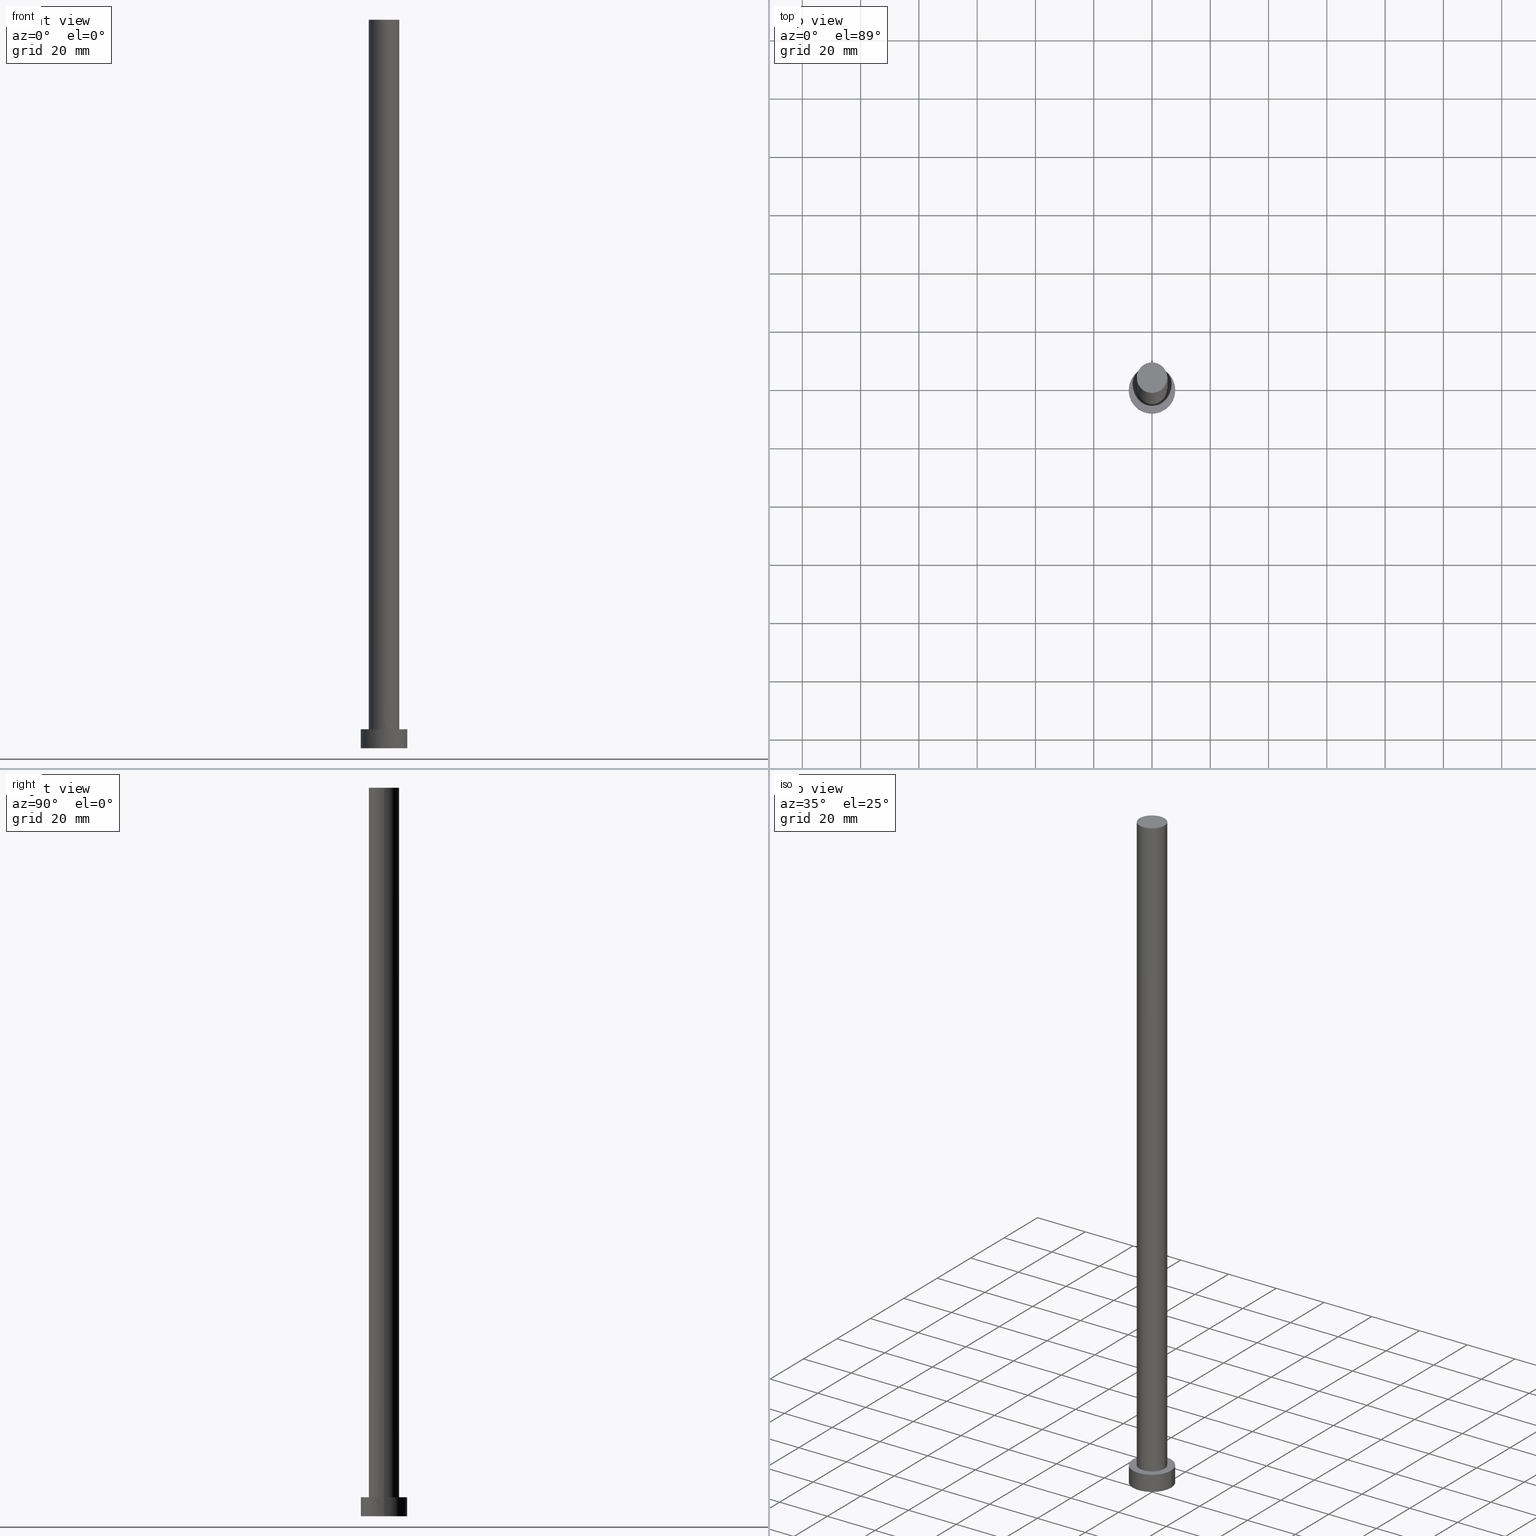
[diagram: canonical four-view strip — front | top / right | iso, engineering-drawing reading convention]
A machine part, canonical four-view strip (front | top / right | iso — engineering-drawing reading convention). The complete STEP part file that produces these views, byte-faithful:
ISO-10303-21;
HEADER;
FILE_DESCRIPTION (( 'STEP AP203' ),
    '1' );
FILE_NAME ('ee8f.STEP',
    '2023-02-13T12:22:09',
    ( '' ),
    ( '' ),
    'SwSTEP 2.0',
    'SolidWorks 2019',
    '' );
FILE_SCHEMA (( 'CONFIG_CONTROL_DESIGN' ));
ENDSEC;

DATA;
#1 = APPROVAL_DATE_TIME ( #7, #166 ) ;
#2 = APPROVAL_DATE_TIME ( #125, #99 ) ;
#3 = CC_DESIGN_PERSON_AND_ORGANIZATION_ASSIGNMENT ( #137, #178, ( #198 ) ) ;
#4 = CARTESIAN_POINT ( 'NONE',  ( -8.000000000000000000, 0.000000000000000000, 0.000000000000000000 ) ) ;
#5 = DATE_AND_TIME ( #28, #92 ) ;
#6 = ORIENTED_EDGE ( 'NONE', *, *, #126, .F. ) ;
#7 = DATE_AND_TIME ( #156, #243 ) ;
#8 = CARTESIAN_POINT ( 'NONE',  ( 0.000000000000000000, 0.000000000000000000, 6.500000000000000000 ) ) ;
#9 = PERSON_AND_ORGANIZATION_ROLE ( 'design_owner' ) ;
#10 = DIRECTION ( 'NONE',  ( -0.000000000000000000, -0.000000000000000000, -1.000000000000000000 ) ) ;
#11 = CARTESIAN_POINT ( 'NONE',  ( 0.000000000000000000, 0.000000000000000000, 250.0000000000000000 ) ) ;
#12 = CARTESIAN_POINT ( 'NONE',  ( 5.250000000000000888, 6.429395695523605139E-16, 250.0000000000000000 ) ) ;
#13 = SECURITY_CLASSIFICATION ( '', '', #240 ) ;
#14 = CARTESIAN_POINT ( 'NONE',  ( 0.000000000000000000, 0.000000000000000000, 6.500000000000000000 ) ) ;
#15 = ORIENTED_EDGE ( 'NONE', *, *, #136, .F. ) ;
#16 = VECTOR ( 'NONE', #50, 1000.000000000000000 ) ;
#17 = CC_DESIGN_PERSON_AND_ORGANIZATION_ASSIGNMENT ( #140, #153, ( #13 ) ) ;
#18 = APPROVAL_PERSON_ORGANIZATION ( #41, #166, #215 ) ;
#19 = DIRECTION ( 'NONE',  ( 1.000000000000000000, 0.000000000000000000, 0.000000000000000000 ) ) ;
#20 = EDGE_CURVE ( 'NONE', #105, #252, #159, .T. ) ;
#21 = AXIS2_PLACEMENT_3D ( 'NONE', #83, #157, #239 ) ;
#22 = EDGE_LOOP ( 'NONE', ( #132, #116, #80, #194 ) ) ;
#23 = APPROVAL_STATUS ( 'not_yet_approved' ) ;
#24 = EDGE_LOOP ( 'NONE', ( #141, #174 ) ) ;
#25 = DIRECTION ( 'NONE',  ( 0.000000000000000000, 0.000000000000000000, 1.000000000000000000 ) ) ;
#26 = ORIENTED_EDGE ( 'NONE', *, *, #37, .F. ) ;
#27 = PRODUCT_RELATED_PRODUCT_CATEGORY ( 'detail', '', ( #87 ) ) ;
#28 = CALENDAR_DATE ( 2023, 13, 2 ) ;
#29 = ORIENTED_EDGE ( 'NONE', *, *, #94, .T. ) ;
#30 = EDGE_LOOP ( 'NONE', ( #26, #6, #200, #142 ) ) ;
#31 = CC_DESIGN_APPROVAL ( #74, ( #13 ) ) ;
#32 = DIRECTION ( 'NONE',  ( 1.000000000000000000, 0.000000000000000000, 0.000000000000000000 ) ) ;
#33 = PRODUCT_DEFINITION ( 'NEZN�M�', '', #198, #255 ) ;
#34 = DIRECTION ( 'NONE',  ( -0.000000000000000000, -0.000000000000000000, -1.000000000000000000 ) ) ;
#35 = ORIENTED_EDGE ( 'NONE', *, *, #20, .F. ) ;
#36 = FACE_OUTER_BOUND ( 'NONE', #90, .T. ) ;
#37 = EDGE_CURVE ( 'NONE', #230, #188, #97, .T. ) ;
#38 = DIRECTION ( 'NONE',  ( 0.000000000000000000, 0.000000000000000000, 1.000000000000000000 ) ) ;
#39 = CIRCLE ( 'NONE', #186, 5.250000000000000888 ) ;
#40 = ORIENTED_EDGE ( 'NONE', *, *, #126, .T. ) ;
#41 = PERSON_AND_ORGANIZATION ( #212, #115 ) ;
#42 = FACE_OUTER_BOUND ( 'NONE', #149, .T. ) ;
#43 = EDGE_LOOP ( 'NONE', ( #93, #190 ) ) ;
#44 = COORDINATED_UNIVERSAL_TIME_OFFSET ( 1, 0, .AHEAD. ) ;
#45 = MECHANICAL_CONTEXT ( 'NONE', #180, 'mechanical' ) ;
#46 = CARTESIAN_POINT ( 'NONE',  ( 5.250000000000000888, 6.429395695523605139E-16, 6.500000000000000000 ) ) ;
#47 = CARTESIAN_POINT ( 'NONE',  ( 0.000000000000000000, 0.000000000000000000, 0.000000000000000000 ) ) ;
#48 = AXIS2_PLACEMENT_3D ( 'NONE', #196, #25, #19 ) ;
#49 = CC_DESIGN_DATE_AND_TIME_ASSIGNMENT ( #5, #104, ( #33 ) ) ;
#50 = DIRECTION ( 'NONE',  ( -0.000000000000000000, -0.000000000000000000, -1.000000000000000000 ) ) ;
#51 = CYLINDRICAL_SURFACE ( 'NONE', #206, 5.250000000000000888 ) ;
#52 = ORIENTED_EDGE ( 'NONE', *, *, #94, .F. ) ;
#53 = DIRECTION ( 'NONE',  ( 1.000000000000000000, 0.000000000000000000, 0.000000000000000000 ) ) ;
#54 =( LENGTH_UNIT ( ) NAMED_UNIT ( * ) SI_UNIT ( .MILLI., .METRE. ) );
#55 = ADVANCED_FACE ( 'NONE', ( #182 ), #175, .T. ) ;
#56 = APPROVAL_PERSON_ORGANIZATION ( #60, #74, #161 ) ;
#57 = PERSON_AND_ORGANIZATION_ROLE ( 'creator' ) ;
#58 = CARTESIAN_POINT ( 'NONE',  ( 5.250000000000000888, 6.429395695523605139E-16, 250.0000000000000000 ) ) ;
#59 = MANIFOLD_SOLID_BREP ( 'P�idat vysunut�m3', #217 ) ;
#60 = PERSON_AND_ORGANIZATION ( #212, #115 ) ;
#61 = DIRECTION ( 'NONE',  ( 0.000000000000000000, 0.000000000000000000, 1.000000000000000000 ) ) ;
#62 = AXIS2_PLACEMENT_3D ( 'NONE', #8, #160, #242 ) ;
#63 = PERSON_AND_ORGANIZATION ( #212, #115 ) ;
#64 = ORIENTED_EDGE ( 'NONE', *, *, #232, .T. ) ;
#65 = CALENDAR_DATE ( 2023, 13, 2 ) ;
#66 = VERTEX_POINT ( 'NONE', #4 ) ;
#67 = CIRCLE ( 'NONE', #21, 8.000000000000000000 ) ;
#68 = DIRECTION ( 'NONE',  ( 1.000000000000000000, 0.000000000000000000, 0.000000000000000000 ) ) ;
#69 = DIRECTION ( 'NONE',  ( 0.000000000000000000, 0.000000000000000000, 1.000000000000000000 ) ) ;
#70 = AXIS2_PLACEMENT_3D ( 'NONE', #11, #10, #246 ) ;
#71 = DIRECTION ( 'NONE',  ( -1.000000000000000000, 0.000000000000000000, 0.000000000000000000 ) ) ;
#72 = CARTESIAN_POINT ( 'NONE',  ( 0.000000000000000000, 0.000000000000000000, 6.500000000000000000 ) ) ;
#73 = CC_DESIGN_APPROVAL ( #166, ( #198 ) ) ;
#74 = APPROVAL ( #195, 'NEUR�EN�' ) ;
#75 = CC_DESIGN_SECURITY_CLASSIFICATION ( #13, ( #198 ) ) ;
#76 = EDGE_CURVE ( 'NONE', #188, #66, #67, .T. ) ;
#77 = APPROVAL_STATUS ( 'not_yet_approved' ) ;
#78 = COORDINATED_UNIVERSAL_TIME_OFFSET ( 1, 0, .AHEAD. ) ;
#79 = APPLICATION_PROTOCOL_DEFINITION ( 'international standard', 'config_control_design', 1994, #180 ) ;
#80 = ORIENTED_EDGE ( 'NONE', *, *, #76, .T. ) ;
#81 = CARTESIAN_POINT ( 'NONE',  ( 0.000000000000000000, 0.000000000000000000, 6.500000000000000000 ) ) ;
#82 = EDGE_CURVE ( 'NONE', #230, #218, #164, .T. ) ;
#83 = CARTESIAN_POINT ( 'NONE',  ( 0.000000000000000000, 0.000000000000000000, 0.000000000000000000 ) ) ;
#84 = CARTESIAN_POINT ( 'NONE',  ( -8.000000000000000000, 0.000000000000000000, 6.500000000000000000 ) ) ;
#85 = DIRECTION ( 'NONE',  ( 0.000000000000000000, 0.000000000000000000, 1.000000000000000000 ) ) ;
#86 = CC_DESIGN_DATE_AND_TIME_ASSIGNMENT ( #117, #96, ( #13 ) ) ;
#87 = PRODUCT ( 'ee8f', 'ee8f', '', ( #45 ) ) ;
#88 = VERTEX_POINT ( 'NONE', #46 ) ;
#89 = CARTESIAN_POINT ( 'NONE',  ( 0.000000000000000000, 0.000000000000000000, 0.000000000000000000 ) ) ;
#90 = EDGE_LOOP ( 'NONE', ( #29, #64 ) ) ;
#91 = CIRCLE ( 'NONE', #151, 8.000000000000000000 ) ;
#92 = LOCAL_TIME ( 13, 22, 9.000000000000000000, #201 ) ;
#93 = ORIENTED_EDGE ( 'NONE', *, *, #187, .F. ) ;
#94 = EDGE_CURVE ( 'NONE', #105, #208, #231, .T. ) ;
#95 = ORIENTED_EDGE ( 'NONE', *, *, #20, .T. ) ;
#96 = DATE_TIME_ROLE ( 'classification_date' ) ;
#97 = LINE ( 'NONE', #127, #139 ) ;
#98 = PERSON_AND_ORGANIZATION ( #212, #115 ) ;
#99 = APPROVAL ( #23, 'NEUR�EN�' ) ;
#100 = ORIENTED_EDGE ( 'NONE', *, *, #136, .T. ) ;
#101 = APPROVAL_DATE_TIME ( #199, #74 ) ;
#102 = CARTESIAN_POINT ( 'NONE',  ( 0.000000000000000000, 0.000000000000000000, 250.0000000000000000 ) ) ;
#103 = CIRCLE ( 'NONE', #62, 8.000000000000000000 ) ;
#104 = DATE_TIME_ROLE ( 'creation_date' ) ;
#105 = VERTEX_POINT ( 'NONE', #221 ) ;
#106 = CC_DESIGN_PERSON_AND_ORGANIZATION_ASSIGNMENT ( #98, #57, ( #33 ) ) ;
#107 = CARTESIAN_POINT ( 'NONE',  ( -5.250000000000000888, 0.000000000000000000, 250.0000000000000000 ) ) ;
#108 = FACE_OUTER_BOUND ( 'NONE', #30, .T. ) ;
#109 = CIRCLE ( 'NONE', #203, 5.250000000000000888 ) ;
#110 = DIRECTION ( 'NONE',  ( -0.000000000000000000, -0.000000000000000000, -1.000000000000000000 ) ) ;
#111 = AXIS2_PLACEMENT_3D ( 'NONE', #47, #251, #148 ) ;
#112 = CIRCLE ( 'NONE', #213, 5.250000000000000888 ) ;
#113 = PLANE ( 'NONE',  #111 ) ;
#114 = CARTESIAN_POINT ( 'NONE',  ( 0.000000000000000000, 0.000000000000000000, 250.0000000000000000 ) ) ;
#115 = ORGANIZATION ( 'NEUR�EN�', 'NEUR�EN�', '' ) ;
#116 = ORIENTED_EDGE ( 'NONE', *, *, #37, .T. ) ;
#117 = DATE_AND_TIME ( #238, #168 ) ;
#118 = AXIS2_PLACEMENT_3D ( 'NONE', #102, #61, #177 ) ;
#119 = CC_DESIGN_PERSON_AND_ORGANIZATION_ASSIGNMENT ( #219, #158, ( #198 ) ) ;
#120 =( NAMED_UNIT ( * ) PLANE_ANGLE_UNIT ( ) SI_UNIT ( $, .RADIAN. ) );
#121 = DIRECTION ( 'NONE',  ( -0.000000000000000000, -0.000000000000000000, -1.000000000000000000 ) ) ;
#122 = AXIS2_PLACEMENT_3D ( 'NONE', #114, #189, #234 ) ;
#123 = PERSON_AND_ORGANIZATION ( #212, #115 ) ;
#124 = EDGE_LOOP ( 'NONE', ( #15, #52, #95, #179 ) ) ;
#125 = DATE_AND_TIME ( #220, #224 ) ;
#126 = EDGE_CURVE ( 'NONE', #218, #230, #103, .T. ) ;
#127 = CARTESIAN_POINT ( 'NONE',  ( 8.000000000000000000, 9.797174393178823685E-16, 6.500000000000000000 ) ) ;
#128 = CYLINDRICAL_SURFACE ( 'NONE', #172, 8.000000000000000000 ) ;
#129 = CARTESIAN_POINT ( 'NONE',  ( 0.000000000000000000, 0.000000000000000000, 250.0000000000000000 ) ) ;
#130 = DIRECTION ( 'NONE',  ( -0.000000000000000000, -0.000000000000000000, -1.000000000000000000 ) ) ;
#131 = PLANE ( 'NONE',  #122 ) ;
#132 = ORIENTED_EDGE ( 'NONE', *, *, #82, .F. ) ;
#133 = AXIS2_PLACEMENT_3D ( 'NONE', #184, #38, #144 ) ;
#134 = VECTOR ( 'NONE', #135, 1000.000000000000000 ) ;
#135 = DIRECTION ( 'NONE',  ( -0.000000000000000000, -0.000000000000000000, -1.000000000000000000 ) ) ;
#136 = EDGE_CURVE ( 'NONE', #208, #88, #237, .T. ) ;
#137 = PERSON_AND_ORGANIZATION ( #212, #115 ) ;
#138 = ORIENTED_EDGE ( 'NONE', *, *, #232, .F. ) ;
#139 = VECTOR ( 'NONE', #197, 1000.000000000000000 ) ;
#140 = PERSON_AND_ORGANIZATION ( #212, #115 ) ;
#141 = ORIENTED_EDGE ( 'NONE', *, *, #229, .F. ) ;
#142 = ORIENTED_EDGE ( 'NONE', *, *, #187, .T. ) ;
#143 = DIRECTION ( 'NONE',  ( 1.000000000000000000, 0.000000000000000000, 0.000000000000000000 ) ) ;
#144 = DIRECTION ( 'NONE',  ( 1.000000000000000000, 0.000000000000000000, -0.000000000000000000 ) ) ;
#145 = DIRECTION ( 'NONE',  ( 0.000000000000000000, 0.000000000000000000, 1.000000000000000000 ) ) ;
#146 = ADVANCED_FACE ( 'NONE', ( #42 ), #51, .T. ) ;
#147 = PRODUCT_DEFINITION_SHAPE ( 'NONE', 'NONE',  #33 ) ;
#148 = DIRECTION ( 'NONE',  ( 1.000000000000000000, 0.000000000000000000, -0.000000000000000000 ) ) ;
#149 = EDGE_LOOP ( 'NONE', ( #138, #100, #191, #35 ) ) ;
#150 = DIRECTION ( 'NONE',  ( -1.000000000000000000, 0.000000000000000000, 0.000000000000000000 ) ) ;
#151 = AXIS2_PLACEMENT_3D ( 'NONE', #89, #69, #68 ) ;
#152 = CC_DESIGN_APPROVAL ( #99, ( #33 ) ) ;
#153 = PERSON_AND_ORGANIZATION_ROLE ( 'classification_officer' ) ;
#154 = ADVANCED_FACE ( 'NONE', ( #108 ), #128, .T. ) ;
#155 = APPROVAL_PERSON_ORGANIZATION ( #123, #99, #241 ) ;
#156 = CALENDAR_DATE ( 2023, 13, 2 ) ;
#157 = DIRECTION ( 'NONE',  ( 0.000000000000000000, 0.000000000000000000, 1.000000000000000000 ) ) ;
#158 = PERSON_AND_ORGANIZATION_ROLE ( 'design_supplier' ) ;
#159 = LINE ( 'NONE', #107, #233 ) ;
#160 = DIRECTION ( 'NONE',  ( 0.000000000000000000, 0.000000000000000000, 1.000000000000000000 ) ) ;
#161 = APPROVAL_ROLE ( '' ) ;
#162 = DIRECTION ( 'NONE',  ( 0.000000000000000000, 0.000000000000000000, 1.000000000000000000 ) ) ;
#163 = CARTESIAN_POINT ( 'NONE',  ( 0.000000000000000000, 0.000000000000000000, 6.500000000000000000 ) ) ;
#164 = CIRCLE ( 'NONE', #192, 8.000000000000000000 ) ;
#165 = LINE ( 'NONE', #210, #16 ) ;
#166 = APPROVAL ( #77, 'NEUR�EN�' ) ;
#167 = ADVANCED_BREP_SHAPE_REPRESENTATION ( 'ee8f', ( #59, #48 ), #227 ) ;
#168 = LOCAL_TIME ( 13, 22, 9.000000000000000000, #44 ) ;
#169 = FACE_OUTER_BOUND ( 'NONE', #202, .T. ) ;
#170 = CARTESIAN_POINT ( 'NONE',  ( -5.250000000000000888, 0.000000000000000000, 6.500000000000000000 ) ) ;
#171 = EDGE_CURVE ( 'NONE', #88, #252, #109, .T. ) ;
#172 = AXIS2_PLACEMENT_3D ( 'NONE', #14, #130, #71 ) ;
#173 = FACE_OUTER_BOUND ( 'NONE', #22, .T. ) ;
#174 = ORIENTED_EDGE ( 'NONE', *, *, #171, .F. ) ;
#175 = CYLINDRICAL_SURFACE ( 'NONE', #70, 5.250000000000000888 ) ;
#176 = COORDINATED_UNIVERSAL_TIME_OFFSET ( 1, 0, .AHEAD. ) ;
#177 = DIRECTION ( 'NONE',  ( 1.000000000000000000, 0.000000000000000000, 0.000000000000000000 ) ) ;
#178 = PERSON_AND_ORGANIZATION_ROLE ( 'creator' ) ;
#179 = ORIENTED_EDGE ( 'NONE', *, *, #229, .T. ) ;
#180 = APPLICATION_CONTEXT ( 'configuration controlled 3d designs of mechanical parts and assemblies' ) ;
#181 = LOCAL_TIME ( 13, 22, 9.000000000000000000, #245 ) ;
#182 = FACE_OUTER_BOUND ( 'NONE', #124, .T. ) ;
#183 = ADVANCED_FACE ( 'NONE', ( #207, #169 ), #250, .T. ) ;
#184 = CARTESIAN_POINT ( 'NONE',  ( 0.000000000000000000, 0.000000000000000000, 6.500000000000000000 ) ) ;
#185 = DIRECTION ( 'NONE',  ( 0.000000000000000000, 0.000000000000000000, 1.000000000000000000 ) ) ;
#186 = AXIS2_PLACEMENT_3D ( 'NONE', #129, #85, #53 ) ;
#187 = EDGE_CURVE ( 'NONE', #66, #188, #91, .T. ) ;
#188 = VERTEX_POINT ( 'NONE', #209 ) ;
#189 = DIRECTION ( 'NONE',  ( 0.000000000000000000, 0.000000000000000000, 1.000000000000000000 ) ) ;
#190 = ORIENTED_EDGE ( 'NONE', *, *, #76, .F. ) ;
#191 = ORIENTED_EDGE ( 'NONE', *, *, #171, .T. ) ;
#192 = AXIS2_PLACEMENT_3D ( 'NONE', #81, #162, #143 ) ;
#193 = ADVANCED_FACE ( 'NONE', ( #223 ), #113, .F. ) ;
#194 = ORIENTED_EDGE ( 'NONE', *, *, #211, .F. ) ;
#195 = APPROVAL_STATUS ( 'not_yet_approved' ) ;
#196 = CARTESIAN_POINT ( 'NONE',  ( 0.000000000000000000, 0.000000000000000000, 0.000000000000000000 ) ) ;
#197 = DIRECTION ( 'NONE',  ( -0.000000000000000000, -0.000000000000000000, -1.000000000000000000 ) ) ;
#198 = PRODUCT_DEFINITION_FORMATION_WITH_SPECIFIED_SOURCE ( 'LIBOVOLN�', '', #87, .NOT_KNOWN. ) ;
#199 = DATE_AND_TIME ( #65, #181 ) ;
#200 = ORIENTED_EDGE ( 'NONE', *, *, #211, .T. ) ;
#201 = COORDINATED_UNIVERSAL_TIME_OFFSET ( 1, 0, .AHEAD. ) ;
#202 = EDGE_LOOP ( 'NONE', ( #40, #253 ) ) ;
#203 = AXIS2_PLACEMENT_3D ( 'NONE', #163, #185, #32 ) ;
#204 = ADVANCED_FACE ( 'NONE', ( #173 ), #247, .T. ) ;
#205 = DIRECTION ( 'NONE',  ( 1.000000000000000000, 0.000000000000000000, 0.000000000000000000 ) ) ;
#206 = AXIS2_PLACEMENT_3D ( 'NONE', #228, #110, #226 ) ;
#207 = FACE_BOUND ( 'NONE', #24, .T. ) ;
#208 = VERTEX_POINT ( 'NONE', #12 ) ;
#209 = CARTESIAN_POINT ( 'NONE',  ( 8.000000000000000000, 9.797174393178823685E-16, 0.000000000000000000 ) ) ;
#210 = CARTESIAN_POINT ( 'NONE',  ( -8.000000000000000000, 0.000000000000000000, 6.500000000000000000 ) ) ;
#211 = EDGE_CURVE ( 'NONE', #218, #66, #165, .T. ) ;
#212 = PERSON ( 'NEUR�EN�', 'NEUR�EN�', 'NEUR�EN�', ('NEUR�EN�'), ('NEUR�EN�'), ('NEUR�EN�') ) ;
#213 = AXIS2_PLACEMENT_3D ( 'NONE', #248, #145, #205 ) ;
#214 =( NAMED_UNIT ( * ) SI_UNIT ( $, .STERADIAN. ) SOLID_ANGLE_UNIT ( ) );
#215 = APPROVAL_ROLE ( '' ) ;
#216 = UNCERTAINTY_MEASURE_WITH_UNIT (LENGTH_MEASURE( 1.000000000000000082E-05 ), #54, 'distance_accuracy_value', 'NONE');
#217 = CLOSED_SHELL ( 'NONE', ( #146, #204, #154, #183, #193, #55, #254 ) ) ;
#218 = VERTEX_POINT ( 'NONE', #84 ) ;
#219 = PERSON_AND_ORGANIZATION ( #212, #115 ) ;
#220 = CALENDAR_DATE ( 2023, 13, 2 ) ;
#221 = CARTESIAN_POINT ( 'NONE',  ( -5.250000000000000888, 0.000000000000000000, 250.0000000000000000 ) ) ;
#222 = SHAPE_DEFINITION_REPRESENTATION ( #147, #167 ) ;
#223 = FACE_OUTER_BOUND ( 'NONE', #43, .T. ) ;
#224 = LOCAL_TIME ( 13, 22, 9.000000000000000000, #176 ) ;
#225 = CARTESIAN_POINT ( 'NONE',  ( 8.000000000000000000, 9.797174393178823685E-16, 6.500000000000000000 ) ) ;
#226 = DIRECTION ( 'NONE',  ( -1.000000000000000000, 0.000000000000000000, 0.000000000000000000 ) ) ;
#227 =( GEOMETRIC_REPRESENTATION_CONTEXT ( 3 ) GLOBAL_UNCERTAINTY_ASSIGNED_CONTEXT ( ( #216 ) ) GLOBAL_UNIT_ASSIGNED_CONTEXT ( ( #54, #120, #214 ) ) REPRESENTATION_CONTEXT ( 'NONE', 'WORKASPACE' ) );
#228 = CARTESIAN_POINT ( 'NONE',  ( 0.000000000000000000, 0.000000000000000000, 250.0000000000000000 ) ) ;
#229 = EDGE_CURVE ( 'NONE', #252, #88, #112, .T. ) ;
#230 = VERTEX_POINT ( 'NONE', #225 ) ;
#231 = CIRCLE ( 'NONE', #118, 5.250000000000000888 ) ;
#232 = EDGE_CURVE ( 'NONE', #208, #105, #39, .T. ) ;
#233 = VECTOR ( 'NONE', #121, 1000.000000000000000 ) ;
#234 = DIRECTION ( 'NONE',  ( 1.000000000000000000, 0.000000000000000000, -0.000000000000000000 ) ) ;
#235 = APPLICATION_CONTEXT ( 'configuration controlled 3d designs of mechanical parts and assemblies' ) ;
#236 = APPLICATION_PROTOCOL_DEFINITION ( 'international standard', 'config_control_design', 1994, #235 ) ;
#237 = LINE ( 'NONE', #58, #134 ) ;
#238 = CALENDAR_DATE ( 2023, 13, 2 ) ;
#239 = DIRECTION ( 'NONE',  ( 1.000000000000000000, 0.000000000000000000, 0.000000000000000000 ) ) ;
#240 = SECURITY_CLASSIFICATION_LEVEL ( 'unclassified' ) ;
#241 = APPROVAL_ROLE ( '' ) ;
#242 = DIRECTION ( 'NONE',  ( 1.000000000000000000, 0.000000000000000000, 0.000000000000000000 ) ) ;
#243 = LOCAL_TIME ( 13, 22, 9.000000000000000000, #78 ) ;
#244 = CC_DESIGN_PERSON_AND_ORGANIZATION_ASSIGNMENT ( #63, #9, ( #87 ) ) ;
#245 = COORDINATED_UNIVERSAL_TIME_OFFSET ( 1, 0, .AHEAD. ) ;
#246 = DIRECTION ( 'NONE',  ( -1.000000000000000000, 0.000000000000000000, 0.000000000000000000 ) ) ;
#247 = CYLINDRICAL_SURFACE ( 'NONE', #249, 8.000000000000000000 ) ;
#248 = CARTESIAN_POINT ( 'NONE',  ( 0.000000000000000000, 0.000000000000000000, 6.500000000000000000 ) ) ;
#249 = AXIS2_PLACEMENT_3D ( 'NONE', #72, #34, #150 ) ;
#250 = PLANE ( 'NONE',  #133 ) ;
#251 = DIRECTION ( 'NONE',  ( 0.000000000000000000, 0.000000000000000000, 1.000000000000000000 ) ) ;
#252 = VERTEX_POINT ( 'NONE', #170 ) ;
#253 = ORIENTED_EDGE ( 'NONE', *, *, #82, .T. ) ;
#254 = ADVANCED_FACE ( 'NONE', ( #36 ), #131, .T. ) ;
#255 = DESIGN_CONTEXT ( 'detailed design', #235, 'design' ) ;
ENDSEC;
END-ISO-10303-21;
